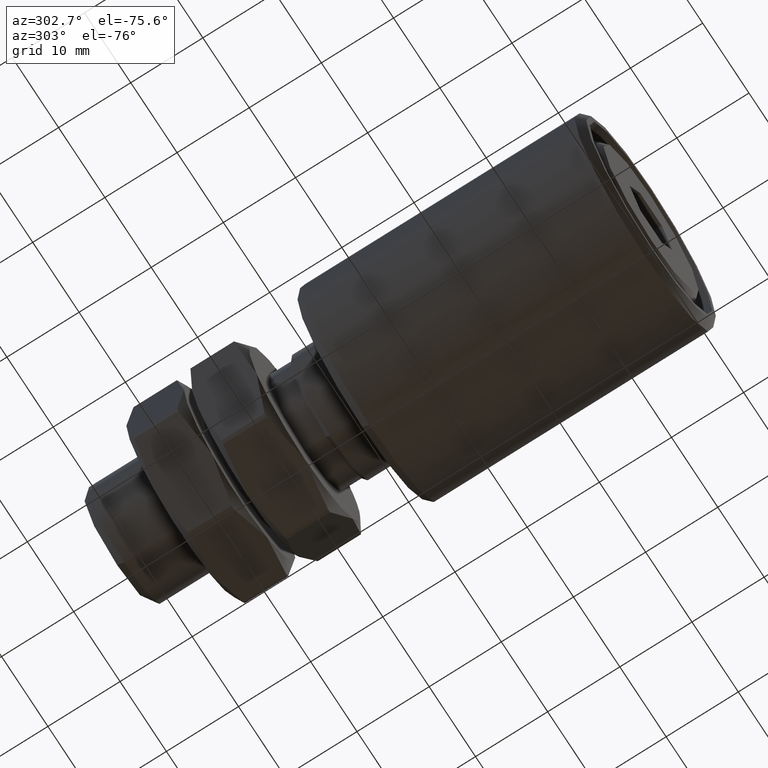
[diagram: clean part render]
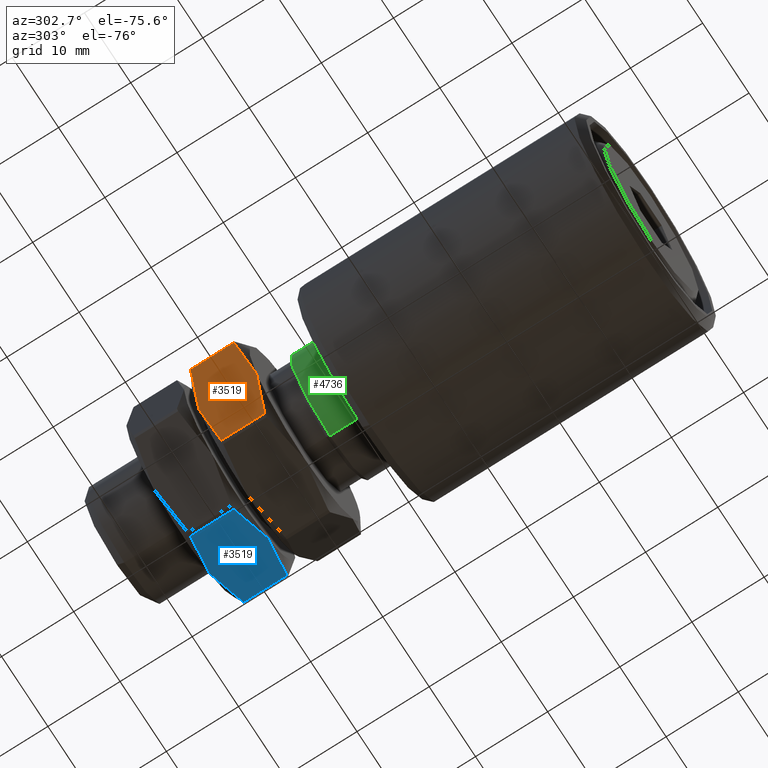
[diagram: same view with three faces highlighted in distinct colors, each labeled with its STEP entity id]
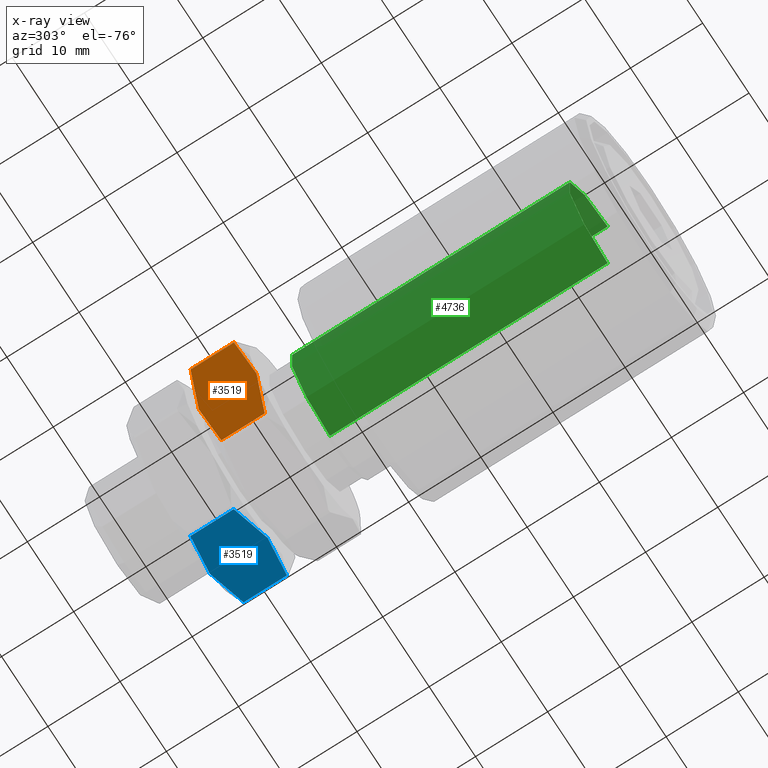
[diagram: x-ray of the same camera — body ghosted, the three highlighted faces saturated]
A machine part, auxiliary view with three faces highlighted in distinct colors.
The next image is the same camera in x-ray (body ghosted, the three faces saturated) — at least one of them is partly hidden behind the body in this view.
Their STEP definitions:

[orange] entity #3519 — the highlighted planar face has unit normal (0.866, 0, 0.5).
#371 = CARTESIAN_POINT ( 'NONE',  ( -10.39230484541326582, -4.000000000000000000, -6.000000000000000888 ) ) ;
#514 = VECTOR ( 'NONE', #13072, 1000.000000000000000 ) ;
#788 = AXIS2_PLACEMENT_3D ( 'NONE', #13265, #5762, #7039 ) ;
#1829 = VERTEX_POINT ( 'NONE', #2031 ) ;
#2031 = CARTESIAN_POINT ( 'NONE',  ( -10.39230484541326582, 4.000000000000000000, -6.000000000000000888 ) ) ;
#2241 = CARTESIAN_POINT ( 'NONE',  ( -12.62147978884748589, 3.562901251027054794, -2.138955739012442958 ) ) ;
#3495 = CARTESIAN_POINT ( 'NONE',  ( -10.95744704231418076, 4.000000000000009770, -5.021145001466505775 ) ) ;
#3519 = ADVANCED_FACE ( 'NONE', ( #9195 ), #9641, .F. ) ;
#3607 = CARTESIAN_POINT ( 'NONE',  ( -10.39230484541326582, 4.000000000000000000, -6.000000000000000888 ) ) ;
#3670 = CARTESIAN_POINT ( 'NONE',  ( -7.615867869546492308, -3.313954435900755335, -10.80892990621412864 ) ) ;
#3752 = ORIENTED_EDGE ( 'NONE', *, *, #9025, .T. ) ;
#3826 = EDGE_LOOP ( 'NONE', ( #5750, #3752, #14023, #4056, #5627, #12631 ) ) ;
#3995 = CARTESIAN_POINT ( 'NONE',  ( -9.268740651451325974, -3.906434174578378826, -7.946070269507235828 ) ) ;
#4056 = ORIENTED_EDGE ( 'NONE', *, *, #13220, .T. ) ;
#4123 = CARTESIAN_POINT ( 'NONE',  ( -7.072540797572912652, 4.000000000000000000, -11.74999999999999822 ) ) ;
#4136 = B_SPLINE_CURVE_WITH_KNOTS ( 'NONE', 3,
 ( #11147, #3670, #5318, #3995, #15202, #371 ),
 .UNSPECIFIED., .F., .F.,
 ( 4, 2, 4 ),
 ( 0.0002976420579474647866, 0.003654043546377307595, 0.007010445034807149915 ),
 .UNSPECIFIED. ) ;
#4518 = CARTESIAN_POINT ( 'NONE',  ( -7.072540797572912652, 3.010220883462389363, -11.74999999999999822 ) ) ;
#4991 = CARTESIAN_POINT ( 'NONE',  ( -10.39230484541326582, 4.000000000000000000, -6.000000000000000888 ) ) ;
#5318 = CARTESIAN_POINT ( 'NONE',  ( -8.163129901979035097, -3.562901251027053018, -9.861044260987551269 ) ) ;
#5443 = CARTESIAN_POINT ( 'NONE',  ( -13.71206889325360478, -3.010220883462392027, -0.2499999999999985845 ) ) ;
#5553 = CARTESIAN_POINT ( 'NONE',  ( -13.17005630627476265, -3.313219605597457207, -1.188793338989207138 ) ) ;
#5627 = ORIENTED_EDGE ( 'NONE', *, *, #9094, .T. ) ;
#5750 = ORIENTED_EDGE ( 'NONE', *, *, #6390, .T. ) ;
#5762 = DIRECTION ( 'NONE',  ( 0.8660254037844387076, -0.000000000000000000, 0.4999999999999998335 ) ) ;
#6199 = CARTESIAN_POINT ( 'NONE',  ( -10.39230484541326582, -4.000000000000000000, -6.000000000000000888 ) ) ;
#6390 = EDGE_CURVE ( 'NONE', #6707, #12011, #9146, .T. ) ;
#6707 = VERTEX_POINT ( 'NONE', #6199 ) ;
#6887 = CARTESIAN_POINT ( 'NONE',  ( -10.95658457648184125, -3.976788126677496926, -5.022638836107912397 ) ) ;
#7039 = DIRECTION ( 'NONE',  ( 0.4999999999999998335, 0.000000000000000000, -0.8660254037844387076 ) ) ;
#7914 = CARTESIAN_POINT ( 'NONE',  ( -11.51623569666507052, -3.886760395136422019, -4.053294661437723434 ) ) ;
#8083 = CARTESIAN_POINT ( 'NONE',  ( -12.62355850601880469, -3.562063013138931478, -2.135355295257163277 ) ) ;
#8139 = B_SPLINE_CURVE_WITH_KNOTS ( 'NONE', 3,
 ( #13280, #15981, #2241, #10966, #3495, #4991 ),
 .UNSPECIFIED., .F., .F.,
 ( 4, 2, 4 ),
 ( 0.0002976420579474634313, 0.003654043546377304559, 0.007010445034807145578 ),
 .UNSPECIFIED. ) ;
#8170 = VERTEX_POINT ( 'NONE', #12119 ) ;
#8468 = CARTESIAN_POINT ( 'NONE',  ( -8.990347189129829886, 3.820028020092779197, -8.428261890743081963 ) ) ;
#9025 = EDGE_CURVE ( 'NONE', #12011, #10965, #12254, .T. ) ;
#9094 = EDGE_CURVE ( 'NONE', #15935, #8170, #13812, .T. ) ;
#9146 = B_SPLINE_CURVE_WITH_KNOTS ( 'NONE', 3,
 ( #11739, #13005, #6887, #7914, #14386, #8083, #5553, #5443 ),
 .UNSPECIFIED., .F., .F.,
 ( 4, 2, 2, 4 ),
 ( 0.007010445034807149915, 0.008682192066603526548, 0.01035393909839990231, 0.01369743316199265211 ),
 .UNSPECIFIED. ) ;
#9195 = FACE_OUTER_BOUND ( 'NONE', #3826, .T. ) ;
#9418 = EDGE_CURVE ( 'NONE', #8170, #6707, #4136, .T. ) ;
#9641 = PLANE ( 'NONE',  #788 ) ;
#10877 = VECTOR ( 'NONE', #14279, 1000.000000000000000 ) ;
#10965 = VERTEX_POINT ( 'NONE', #14926 ) ;
#10966 = CARTESIAN_POINT ( 'NONE',  ( -11.51586903937518969, 3.906434174578379714, -4.053929730492760619 ) ) ;
#10972 = CARTESIAN_POINT ( 'NONE',  ( -10.11082040635886869, 4.000000000000009770, -6.487545349982227982 ) ) ;
#11077 = CARTESIAN_POINT ( 'NONE',  ( -13.71206889325360478, -3.010220883462392027, -0.2499999999999985845 ) ) ;
#11147 = CARTESIAN_POINT ( 'NONE',  ( -7.072540797572598237, -3.010220883462213504, -11.75000000000054357 ) ) ;
#11182 = CARTESIAN_POINT ( 'NONE',  ( -9.828025114344677959, 3.976788126677496926, -6.977361163892083162 ) ) ;
#11399 = CARTESIAN_POINT ( 'NONE',  ( -7.614553384551761006, 3.313219605597455875, -10.81120666101079308 ) ) ;
#11739 = CARTESIAN_POINT ( 'NONE',  ( -10.39230484541326582, -4.000000000000000000, -6.000000000000000888 ) ) ;
#11955 = EDGE_CURVE ( 'NONE', #10965, #1829, #8139, .T. ) ;
#12011 = VERTEX_POINT ( 'NONE', #11077 ) ;
#12119 = CARTESIAN_POINT ( 'NONE',  ( -7.072540797572598237, -3.010220883462213504, -11.75000000000054357 ) ) ;
#12254 = LINE ( 'NONE', #15488, #10877 ) ;
#12631 = ORIENTED_EDGE ( 'NONE', *, *, #9418, .T. ) ;
#13005 = CARTESIAN_POINT ( 'NONE',  ( -10.67378928446765229, -4.000000000000008882, -5.512454650017767577 ) ) ;
#13072 = DIRECTION ( 'NONE',  ( 0.000000000000000000, -1.000000000000000000, 0.000000000000000000 ) ) ;
#13220 = EDGE_CURVE ( 'NONE', #1829, #15935, #14656, .T. ) ;
#13265 = CARTESIAN_POINT ( 'NONE',  ( -6.928203230275506108, 4.000000000000000000, -11.99999999999999822 ) ) ;
#13280 = CARTESIAN_POINT ( 'NONE',  ( -13.71206889325391920, 3.010220883462215280, -0.2499999999994534650 ) ) ;
#13497 = CARTESIAN_POINT ( 'NONE',  ( -8.161051184807723402, 3.562063013138929257, -9.864644704742834946 ) ) ;
#13812 = LINE ( 'NONE', #4123, #514 ) ;
#14023 = ORIENTED_EDGE ( 'NONE', *, *, #11955, .T. ) ;
#14279 = DIRECTION ( 'NONE',  ( -0.000000000000000000, 1.000000000000000000, -0.000000000000000000 ) ) ;
#14386 = CARTESIAN_POINT ( 'NONE',  ( -11.79426250169669110, -3.820028020092780974, -3.571738109256913596 ) ) ;
#14656 = B_SPLINE_CURVE_WITH_KNOTS ( 'NONE', 3,
 ( #3607, #10972, #11182, #14976, #8468, #13497, #11399, #15244 ),
 .UNSPECIFIED., .F., .F.,
 ( 4, 2, 2, 4 ),
 ( 0.007010445034807145578, 0.008682192066603521344, 0.01035393909839989711, 0.01369743316199265037 ),
 .UNSPECIFIED. ) ;
#14926 = CARTESIAN_POINT ( 'NONE',  ( -13.71206889325391920, 3.010220883462215280, -0.2499999999994534650 ) ) ;
#14976 = CARTESIAN_POINT ( 'NONE',  ( -9.268373994161443363, 3.886760395136419799, -7.946705338562268572 ) ) ;
#15202 = CARTESIAN_POINT ( 'NONE',  ( -9.827162648512338450, -4.000000000000009770, -6.978854998533488896 ) ) ;
#15244 = CARTESIAN_POINT ( 'NONE',  ( -7.072540797572912652, 3.010220883462389363, -11.74999999999999822 ) ) ;
#15488 = CARTESIAN_POINT ( 'NONE',  ( -13.71206889325360478, 4.000000000000000000, -0.2499999999999985012 ) ) ;
#15935 = VERTEX_POINT ( 'NONE', #4518 ) ;
#15981 = CARTESIAN_POINT ( 'NONE',  ( -13.16874182128002957, 3.313954435900756668, -1.191070093785871586 ) ) ;

[blue] entity #3519 — the highlighted planar face has unit normal (-0.5, 0, 0.866).
#371 = CARTESIAN_POINT ( 'NONE',  ( -10.39230484541326582, -4.000000000000000000, -6.000000000000000888 ) ) ;
#514 = VECTOR ( 'NONE', #13072, 1000.000000000000000 ) ;
#788 = AXIS2_PLACEMENT_3D ( 'NONE', #13265, #5762, #7039 ) ;
#1829 = VERTEX_POINT ( 'NONE', #2031 ) ;
#2031 = CARTESIAN_POINT ( 'NONE',  ( -10.39230484541326582, 4.000000000000000000, -6.000000000000000888 ) ) ;
#2241 = CARTESIAN_POINT ( 'NONE',  ( -12.62147978884748589, 3.562901251027054794, -2.138955739012442958 ) ) ;
#3495 = CARTESIAN_POINT ( 'NONE',  ( -10.95744704231418076, 4.000000000000009770, -5.021145001466505775 ) ) ;
#3519 = ADVANCED_FACE ( 'NONE', ( #9195 ), #9641, .F. ) ;
#3607 = CARTESIAN_POINT ( 'NONE',  ( -10.39230484541326582, 4.000000000000000000, -6.000000000000000888 ) ) ;
#3670 = CARTESIAN_POINT ( 'NONE',  ( -7.615867869546492308, -3.313954435900755335, -10.80892990621412864 ) ) ;
#3752 = ORIENTED_EDGE ( 'NONE', *, *, #9025, .T. ) ;
#3826 = EDGE_LOOP ( 'NONE', ( #5750, #3752, #14023, #4056, #5627, #12631 ) ) ;
#3995 = CARTESIAN_POINT ( 'NONE',  ( -9.268740651451325974, -3.906434174578378826, -7.946070269507235828 ) ) ;
#4056 = ORIENTED_EDGE ( 'NONE', *, *, #13220, .T. ) ;
#4123 = CARTESIAN_POINT ( 'NONE',  ( -7.072540797572912652, 4.000000000000000000, -11.74999999999999822 ) ) ;
#4136 = B_SPLINE_CURVE_WITH_KNOTS ( 'NONE', 3,
 ( #11147, #3670, #5318, #3995, #15202, #371 ),
 .UNSPECIFIED., .F., .F.,
 ( 4, 2, 4 ),
 ( 0.0002976420579474647866, 0.003654043546377307595, 0.007010445034807149915 ),
 .UNSPECIFIED. ) ;
#4518 = CARTESIAN_POINT ( 'NONE',  ( -7.072540797572912652, 3.010220883462389363, -11.74999999999999822 ) ) ;
#4991 = CARTESIAN_POINT ( 'NONE',  ( -10.39230484541326582, 4.000000000000000000, -6.000000000000000888 ) ) ;
#5318 = CARTESIAN_POINT ( 'NONE',  ( -8.163129901979035097, -3.562901251027053018, -9.861044260987551269 ) ) ;
#5443 = CARTESIAN_POINT ( 'NONE',  ( -13.71206889325360478, -3.010220883462392027, -0.2499999999999985845 ) ) ;
#5553 = CARTESIAN_POINT ( 'NONE',  ( -13.17005630627476265, -3.313219605597457207, -1.188793338989207138 ) ) ;
#5627 = ORIENTED_EDGE ( 'NONE', *, *, #9094, .T. ) ;
#5750 = ORIENTED_EDGE ( 'NONE', *, *, #6390, .T. ) ;
#5762 = DIRECTION ( 'NONE',  ( 0.8660254037844387076, -0.000000000000000000, 0.4999999999999998335 ) ) ;
#6199 = CARTESIAN_POINT ( 'NONE',  ( -10.39230484541326582, -4.000000000000000000, -6.000000000000000888 ) ) ;
#6390 = EDGE_CURVE ( 'NONE', #6707, #12011, #9146, .T. ) ;
#6707 = VERTEX_POINT ( 'NONE', #6199 ) ;
#6887 = CARTESIAN_POINT ( 'NONE',  ( -10.95658457648184125, -3.976788126677496926, -5.022638836107912397 ) ) ;
#7039 = DIRECTION ( 'NONE',  ( 0.4999999999999998335, 0.000000000000000000, -0.8660254037844387076 ) ) ;
#7914 = CARTESIAN_POINT ( 'NONE',  ( -11.51623569666507052, -3.886760395136422019, -4.053294661437723434 ) ) ;
#8083 = CARTESIAN_POINT ( 'NONE',  ( -12.62355850601880469, -3.562063013138931478, -2.135355295257163277 ) ) ;
#8139 = B_SPLINE_CURVE_WITH_KNOTS ( 'NONE', 3,
 ( #13280, #15981, #2241, #10966, #3495, #4991 ),
 .UNSPECIFIED., .F., .F.,
 ( 4, 2, 4 ),
 ( 0.0002976420579474634313, 0.003654043546377304559, 0.007010445034807145578 ),
 .UNSPECIFIED. ) ;
#8170 = VERTEX_POINT ( 'NONE', #12119 ) ;
#8468 = CARTESIAN_POINT ( 'NONE',  ( -8.990347189129829886, 3.820028020092779197, -8.428261890743081963 ) ) ;
#9025 = EDGE_CURVE ( 'NONE', #12011, #10965, #12254, .T. ) ;
#9094 = EDGE_CURVE ( 'NONE', #15935, #8170, #13812, .T. ) ;
#9146 = B_SPLINE_CURVE_WITH_KNOTS ( 'NONE', 3,
 ( #11739, #13005, #6887, #7914, #14386, #8083, #5553, #5443 ),
 .UNSPECIFIED., .F., .F.,
 ( 4, 2, 2, 4 ),
 ( 0.007010445034807149915, 0.008682192066603526548, 0.01035393909839990231, 0.01369743316199265211 ),
 .UNSPECIFIED. ) ;
#9195 = FACE_OUTER_BOUND ( 'NONE', #3826, .T. ) ;
#9418 = EDGE_CURVE ( 'NONE', #8170, #6707, #4136, .T. ) ;
#9641 = PLANE ( 'NONE',  #788 ) ;
#10877 = VECTOR ( 'NONE', #14279, 1000.000000000000000 ) ;
#10965 = VERTEX_POINT ( 'NONE', #14926 ) ;
#10966 = CARTESIAN_POINT ( 'NONE',  ( -11.51586903937518969, 3.906434174578379714, -4.053929730492760619 ) ) ;
#10972 = CARTESIAN_POINT ( 'NONE',  ( -10.11082040635886869, 4.000000000000009770, -6.487545349982227982 ) ) ;
#11077 = CARTESIAN_POINT ( 'NONE',  ( -13.71206889325360478, -3.010220883462392027, -0.2499999999999985845 ) ) ;
#11147 = CARTESIAN_POINT ( 'NONE',  ( -7.072540797572598237, -3.010220883462213504, -11.75000000000054357 ) ) ;
#11182 = CARTESIAN_POINT ( 'NONE',  ( -9.828025114344677959, 3.976788126677496926, -6.977361163892083162 ) ) ;
#11399 = CARTESIAN_POINT ( 'NONE',  ( -7.614553384551761006, 3.313219605597455875, -10.81120666101079308 ) ) ;
#11739 = CARTESIAN_POINT ( 'NONE',  ( -10.39230484541326582, -4.000000000000000000, -6.000000000000000888 ) ) ;
#11955 = EDGE_CURVE ( 'NONE', #10965, #1829, #8139, .T. ) ;
#12011 = VERTEX_POINT ( 'NONE', #11077 ) ;
#12119 = CARTESIAN_POINT ( 'NONE',  ( -7.072540797572598237, -3.010220883462213504, -11.75000000000054357 ) ) ;
#12254 = LINE ( 'NONE', #15488, #10877 ) ;
#12631 = ORIENTED_EDGE ( 'NONE', *, *, #9418, .T. ) ;
#13005 = CARTESIAN_POINT ( 'NONE',  ( -10.67378928446765229, -4.000000000000008882, -5.512454650017767577 ) ) ;
#13072 = DIRECTION ( 'NONE',  ( 0.000000000000000000, -1.000000000000000000, 0.000000000000000000 ) ) ;
#13220 = EDGE_CURVE ( 'NONE', #1829, #15935, #14656, .T. ) ;
#13265 = CARTESIAN_POINT ( 'NONE',  ( -6.928203230275506108, 4.000000000000000000, -11.99999999999999822 ) ) ;
#13280 = CARTESIAN_POINT ( 'NONE',  ( -13.71206889325391920, 3.010220883462215280, -0.2499999999994534650 ) ) ;
#13497 = CARTESIAN_POINT ( 'NONE',  ( -8.161051184807723402, 3.562063013138929257, -9.864644704742834946 ) ) ;
#13812 = LINE ( 'NONE', #4123, #514 ) ;
#14023 = ORIENTED_EDGE ( 'NONE', *, *, #11955, .T. ) ;
#14279 = DIRECTION ( 'NONE',  ( -0.000000000000000000, 1.000000000000000000, -0.000000000000000000 ) ) ;
#14386 = CARTESIAN_POINT ( 'NONE',  ( -11.79426250169669110, -3.820028020092780974, -3.571738109256913596 ) ) ;
#14656 = B_SPLINE_CURVE_WITH_KNOTS ( 'NONE', 3,
 ( #3607, #10972, #11182, #14976, #8468, #13497, #11399, #15244 ),
 .UNSPECIFIED., .F., .F.,
 ( 4, 2, 2, 4 ),
 ( 0.007010445034807145578, 0.008682192066603521344, 0.01035393909839989711, 0.01369743316199265037 ),
 .UNSPECIFIED. ) ;
#14926 = CARTESIAN_POINT ( 'NONE',  ( -13.71206889325391920, 3.010220883462215280, -0.2499999999994534650 ) ) ;
#14976 = CARTESIAN_POINT ( 'NONE',  ( -9.268373994161443363, 3.886760395136419799, -7.946705338562268572 ) ) ;
#15202 = CARTESIAN_POINT ( 'NONE',  ( -9.827162648512338450, -4.000000000000009770, -6.978854998533488896 ) ) ;
#15244 = CARTESIAN_POINT ( 'NONE',  ( -7.072540797572912652, 3.010220883462389363, -11.74999999999999822 ) ) ;
#15488 = CARTESIAN_POINT ( 'NONE',  ( -13.71206889325360478, 4.000000000000000000, -0.2499999999999985012 ) ) ;
#15935 = VERTEX_POINT ( 'NONE', #4518 ) ;
#15981 = CARTESIAN_POINT ( 'NONE',  ( -13.16874182128002957, 3.313954435900756668, -1.191070093785871586 ) ) ;

[green] entity #4736 — the highlighted cylindrical surface (partial cylindrical patch) has radius 8.575 mm, axis along (-0, -1, -0).
#185 = DIRECTION ( 'NONE',  ( 0.000000000000000000, 0.000000000000000000, -1.000000000000000000 ) ) ;
#550 = LINE ( 'NONE', #5729, #7600 ) ;
#2311 = DIRECTION ( 'NONE',  ( -0.000000000000000000, -1.000000000000000000, -0.000000000000000000 ) ) ;
#2357 = FACE_OUTER_BOUND ( 'NONE', #8822, .T. ) ;
#2617 = ORIENTED_EDGE ( 'NONE', *, *, #12374, .T. ) ;
#3326 = CYLINDRICAL_SURFACE ( 'NONE', #5575, 8.575000000000002842 ) ;
#3575 = CARTESIAN_POINT ( 'NONE',  ( 0.000000000000000000, 6.000000000000000000, 0.000000000000000000 ) ) ;
#4284 = CIRCLE ( 'NONE', #4854, 8.575000000000004619 ) ;
#4652 = DIRECTION ( 'NONE',  ( 0.000000000000000000, 0.000000000000000000, -1.000000000000000000 ) ) ;
#4678 = CARTESIAN_POINT ( 'NONE',  ( 1.050134630268855749E-15, 44.50000000000000000, 8.575000000000002842 ) ) ;
#4736 = ADVANCED_FACE ( 'NONE', ( #2357 ), #3326, .T. ) ;
#4854 = AXIS2_PLACEMENT_3D ( 'NONE', #3575, #2311, #4652 ) ;
#4966 = CARTESIAN_POINT ( 'NONE',  ( 0.000000000000000000, 0.000000000000000000, -8.575000000000002842 ) ) ;
#5168 = LINE ( 'NONE', #4966, #14797 ) ;
#5515 = ORIENTED_EDGE ( 'NONE', *, *, #14275, .F. ) ;
#5575 = AXIS2_PLACEMENT_3D ( 'NONE', #13877, #12683, #11469 ) ;
#5581 = CIRCLE ( 'NONE', #8933, 8.575000000000002842 ) ;
#5729 = CARTESIAN_POINT ( 'NONE',  ( 1.050134630268855749E-15, 0.000000000000000000, 8.575000000000002842 ) ) ;
#6058 = EDGE_CURVE ( 'NONE', #15564, #11348, #4284, .T. ) ;
#7387 = CARTESIAN_POINT ( 'NONE',  ( 0.000000000000000000, 44.50000000000000000, -8.575000000000002842 ) ) ;
#7600 = VECTOR ( 'NONE', #9892, 1000.000000000000000 ) ;
#7725 = CARTESIAN_POINT ( 'NONE',  ( 0.000000000000000000, 44.50000000000000000, 0.000000000000000000 ) ) ;
#8050 = VERTEX_POINT ( 'NONE', #4678 ) ;
#8822 = EDGE_LOOP ( 'NONE', ( #5515, #2617, #10092, #14896 ) ) ;
#8933 = AXIS2_PLACEMENT_3D ( 'NONE', #7725, #13957, #185 ) ;
#9245 = VERTEX_POINT ( 'NONE', #7387 ) ;
#9892 = DIRECTION ( 'NONE',  ( -0.000000000000000000, -1.000000000000000000, -0.000000000000000000 ) ) ;
#10092 = ORIENTED_EDGE ( 'NONE', *, *, #10413, .T. ) ;
#10413 = EDGE_CURVE ( 'NONE', #9245, #11348, #5168, .T. ) ;
#11348 = VERTEX_POINT ( 'NONE', #14631 ) ;
#11469 = DIRECTION ( 'NONE',  ( 0.000000000000000000, 0.000000000000000000, -1.000000000000000000 ) ) ;
#12374 = EDGE_CURVE ( 'NONE', #8050, #9245, #5581, .T. ) ;
#12483 = DIRECTION ( 'NONE',  ( -0.000000000000000000, -1.000000000000000000, -0.000000000000000000 ) ) ;
#12683 = DIRECTION ( 'NONE',  ( -0.000000000000000000, -1.000000000000000000, -0.000000000000000000 ) ) ;
#13877 = CARTESIAN_POINT ( 'NONE',  ( 0.000000000000000000, 0.000000000000000000, 0.000000000000000000 ) ) ;
#13957 = DIRECTION ( 'NONE',  ( -0.000000000000000000, -1.000000000000000000, -0.000000000000000000 ) ) ;
#14275 = EDGE_CURVE ( 'NONE', #8050, #15564, #550, .T. ) ;
#14631 = CARTESIAN_POINT ( 'NONE',  ( 0.000000000000000000, 6.000000000000000000, -8.575000000000004619 ) ) ;
#14797 = VECTOR ( 'NONE', #12483, 1000.000000000000000 ) ;
#14896 = ORIENTED_EDGE ( 'NONE', *, *, #6058, .F. ) ;
#15564 = VERTEX_POINT ( 'NONE', #15667 ) ;
#15667 = CARTESIAN_POINT ( 'NONE',  ( 1.050134630268855946E-15, 6.000000000000000000, 8.575000000000004619 ) ) ;